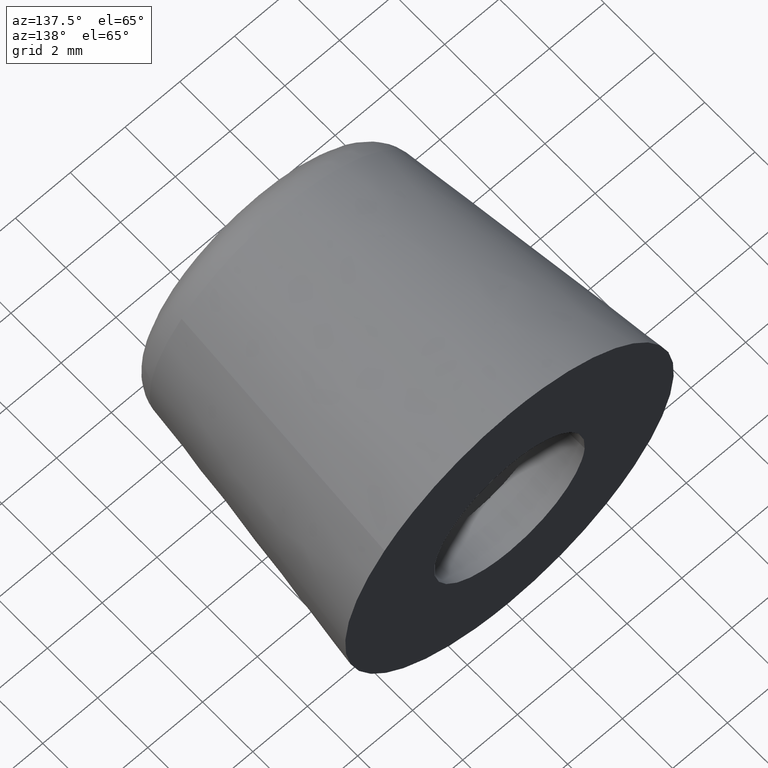
[diagram: clean part render]
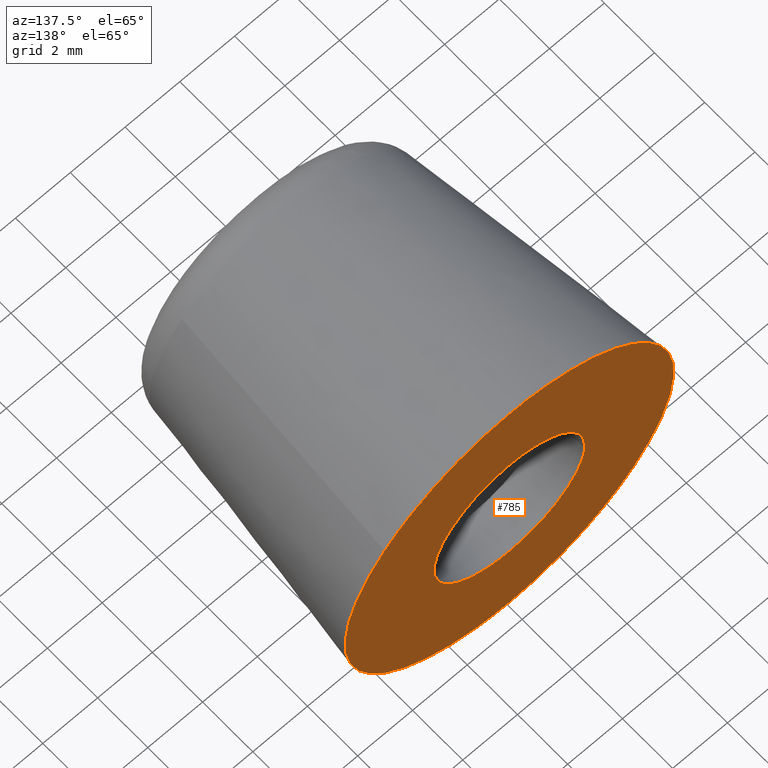
[diagram: same view with one face highlighted and labeled with its STEP entity id]
A machine part, auxiliary view. The second image highlights one B-rep face of the part: STEP entity #785.
In plain terms, the highlighted face is a freeform B-spline surface patch.
Its self-contained STEP definition (entity closure, byte-faithful):
#85=CARTESIAN_POINT('',(2.730776724657624,1.500000000000000,0.324589710324017));
#86=VERTEX_POINT('',#85);
#92=CARTESIAN_POINT('',(0.0,1.500000000000000,-2.750000000000000));
#93=VERTEX_POINT('',#92);
#94=CARTESIAN_POINT('',(2.730776724657625,1.500000000000000,0.324589710324016));
#95=CARTESIAN_POINT('',(2.750000000000000,1.500000000000000,0.162864088109226));
#96=CARTESIAN_POINT('',(2.750000000000000,1.500000000000000,0.0));
#97=CARTESIAN_POINT('',(2.750000000000000,1.500000000000000,-2.750000000000000));
#98=CARTESIAN_POINT('',(0.0,1.500000000000000,-2.750000000000000));
#106=(BOUNDED_CURVE()B_SPLINE_CURVE(2,(#94,#95,#96,#97,#98),.UNSPECIFIED.,.F.,.U.)B_SPLINE_CURVE_WITH_KNOTS((3,2,3),(0.229562747989419,0.250000000000000,0.500000000000000),.UNSPECIFIED.)CURVE()GEOMETRIC_REPRESENTATION_ITEM()RATIONAL_B_SPLINE_CURVE((0.956027292168423,0.976056269899677,1.0,0.707106781186548,1.0))REPRESENTATION_ITEM(''));
#107=EDGE_CURVE('',#86,#93,#106,.T.);
#109=CARTESIAN_POINT('',(-2.744870732306453,1.500000000000000,-0.167882884556682));
#110=VERTEX_POINT('',#109);
#111=CARTESIAN_POINT('',(0.0,1.500000000000000,-2.750000000000000));
#112=CARTESIAN_POINT('',(-2.586942815482608,1.499999999999999,-2.750000000000000));
#113=CARTESIAN_POINT('',(-2.744870732306454,1.500000000000000,-0.167882884556682));
#121=(BOUNDED_CURVE()B_SPLINE_CURVE(2,(#111,#112,#113),.UNSPECIFIED.,.F.,.U.)B_SPLINE_CURVE_WITH_KNOTS((3,3),(0.500000000000000,0.739333037570735),.UNSPECIFIED.)CURVE()GEOMETRIC_REPRESENTATION_ITEM()RATIONAL_B_SPLINE_CURVE((1.0,0.719603905030026,0.976072203117141))REPRESENTATION_ITEM(''));
#122=EDGE_CURVE('',#93,#110,#121,.T.);
#200=CARTESIAN_POINT('',(0.0,1.500000000000000,2.750000000000000));
#201=VERTEX_POINT('',#200);
#202=CARTESIAN_POINT('',(-2.744870732306453,1.500000000000000,-0.167882884556682));
#203=CARTESIAN_POINT('',(-2.749999999999999,1.500000000000000,-0.084019498226959));
#204=CARTESIAN_POINT('',(-2.750000000000000,1.500000000000000,0.0));
#205=CARTESIAN_POINT('',(-2.750000000000000,1.500000000000000,2.750000000000000));
#206=CARTESIAN_POINT('',(0.0,1.500000000000000,2.750000000000000));
#214=(BOUNDED_CURVE()B_SPLINE_CURVE(2,(#202,#203,#204,#205,#206),.UNSPECIFIED.,.F.,.U.)B_SPLINE_CURVE_WITH_KNOTS((3,2,3),(0.739333037570735,0.750000000000000,1.0),.UNSPECIFIED.)CURVE()GEOMETRIC_REPRESENTATION_ITEM()RATIONAL_B_SPLINE_CURVE((0.976072203117141,0.987502876156522,1.0,0.707106781186548,1.0))REPRESENTATION_ITEM(''));
#215=EDGE_CURVE('',#110,#201,#214,.T.);
#217=CARTESIAN_POINT('',(0.0,1.500000000000000,2.750000000000000));
#218=CARTESIAN_POINT('',(2.442483941060845,1.500000000000001,2.750000000000000));
#219=CARTESIAN_POINT('',(2.730776724657625,1.500000000000000,0.324589710324016));
#227=(BOUNDED_CURVE()B_SPLINE_CURVE(2,(#217,#218,#219),.UNSPECIFIED.,.F.,.U.)B_SPLINE_CURVE_WITH_KNOTS((3,3),(0.0,0.229562747989419),.UNSPECIFIED.)CURVE()GEOMETRIC_REPRESENTATION_ITEM()RATIONAL_B_SPLINE_CURVE((1.0,0.731050511286871,0.956027292168423))REPRESENTATION_ITEM(''));
#228=EDGE_CURVE('',#201,#86,#227,.T.);
#301=CARTESIAN_POINT('',(-4.562435850056587,1.499999495957191,-3.896688126865445));
#302=VERTEX_POINT('',#301);
#308=CARTESIAN_POINT('',(0.0,1.500000000000000,-6.0));
#309=VERTEX_POINT('',#308);
#310=CARTESIAN_POINT('',(0.0,1.500000000000000,-6.0));
#311=CARTESIAN_POINT('',(-2.766038081416517,1.500000000000000,-6.000000000000001));
#312=CARTESIAN_POINT('',(-4.562435850056587,1.499999495957191,-3.896688126865444));
#320=(BOUNDED_CURVE()B_SPLINE_CURVE(2,(#310,#311,#312),.UNSPECIFIED.,.F.,.U.)B_SPLINE_CURVE_WITH_KNOTS((3,3),(0.500000000000000,0.636856846745670),.UNSPECIFIED.)CURVE()GEOMETRIC_REPRESENTATION_ITEM()RATIONAL_B_SPLINE_CURVE((1.0,0.839662230560006,0.854871033438346))REPRESENTATION_ITEM(''));
#321=EDGE_CURVE('',#309,#302,#320,.T.);
#323=CARTESIAN_POINT('',(4.562435850056586,1.499999495957190,3.896688126865445));
#324=VERTEX_POINT('',#323);
#325=CARTESIAN_POINT('',(4.562435850056586,1.499999495957190,3.896688126865445));
#326=CARTESIAN_POINT('',(6.000000000000001,1.500000000000000,2.213516680087875));
#327=CARTESIAN_POINT('',(6.0,1.500000000000000,0.0));
#328=CARTESIAN_POINT('',(6.0,1.500000000000000,-6.0));
#329=CARTESIAN_POINT('',(0.0,1.500000000000000,-6.0));
#337=(BOUNDED_CURVE()B_SPLINE_CURVE(2,(#325,#326,#327,#328,#329),.UNSPECIFIED.,.F.,.U.)B_SPLINE_CURVE_WITH_KNOTS((3,2,3),(0.136856846745670,0.250000000000000,0.500000000000000),.UNSPECIFIED.)CURVE()GEOMETRIC_REPRESENTATION_ITEM()RATIONAL_B_SPLINE_CURVE((0.854871033438346,0.867444550626542,1.0,0.707106781186548,1.0))REPRESENTATION_ITEM(''));
#338=EDGE_CURVE('',#324,#309,#337,.T.);
#382=CARTESIAN_POINT('',(0.0,1.500000000000000,6.0));
#383=VERTEX_POINT('',#382);
#384=CARTESIAN_POINT('',(0.0,1.500000000000000,6.0));
#385=CARTESIAN_POINT('',(2.766038081416509,1.500000000000000,6.000000000000001));
#386=CARTESIAN_POINT('',(4.562435850056586,1.499999495957190,3.896688126865445));
#394=(BOUNDED_CURVE()B_SPLINE_CURVE(2,(#384,#385,#386),.UNSPECIFIED.,.F.,.U.)B_SPLINE_CURVE_WITH_KNOTS((3,3),(0.0,0.136856846745670),.UNSPECIFIED.)CURVE()GEOMETRIC_REPRESENTATION_ITEM()RATIONAL_B_SPLINE_CURVE((1.0,0.839662230560006,0.854871033438346))REPRESENTATION_ITEM(''));
#395=EDGE_CURVE('',#383,#324,#394,.T.);
#397=CARTESIAN_POINT('',(-4.562435850056586,1.499999495957191,-3.896688126865445));
#398=CARTESIAN_POINT('',(-6.000000000000001,1.500000000000000,-2.213516680087875));
#399=CARTESIAN_POINT('',(-6.0,1.500000000000000,0.0));
#400=CARTESIAN_POINT('',(-6.0,1.500000000000000,6.0));
#401=CARTESIAN_POINT('',(0.0,1.500000000000000,6.0));
#409=(BOUNDED_CURVE()B_SPLINE_CURVE(2,(#397,#398,#399,#400,#401),.UNSPECIFIED.,.F.,.U.)B_SPLINE_CURVE_WITH_KNOTS((3,2,3),(0.636856846745670,0.750000000000000,1.0),.UNSPECIFIED.)CURVE()GEOMETRIC_REPRESENTATION_ITEM()RATIONAL_B_SPLINE_CURVE((0.854871033438346,0.867444550626542,1.0,0.707106781186548,1.0))REPRESENTATION_ITEM(''));
#410=EDGE_CURVE('',#302,#383,#409,.T.);
#768=CARTESIAN_POINT('',(-6.597568022899032,1.500000000000000,6.599399976741671));
#769=CARTESIAN_POINT('',(-6.597568022899032,1.500000000000000,-6.599400298606753));
#770=CARTESIAN_POINT('',(6.597567915610672,1.500000000000000,6.599399976741671));
#771=CARTESIAN_POINT('',(6.597567915610672,1.500000000000000,-6.599400298606753));
#772=B_SPLINE_SURFACE_WITH_KNOTS('',1,1,((#768,#770),(#769,#771)),.UNSPECIFIED.,.F.,.F.,.U.,(2,2),(2,2),(0.0,13.198800275348420),(0.0,13.195135938509701),.UNSPECIFIED.);
#773=ORIENTED_EDGE('',*,*,#395,.T.);
#774=ORIENTED_EDGE('',*,*,#338,.T.);
#775=ORIENTED_EDGE('',*,*,#321,.T.);
#776=ORIENTED_EDGE('',*,*,#410,.T.);
#777=EDGE_LOOP('',(#773,#774,#775,#776));
#778=FACE_OUTER_BOUND('',#777,.T.);
#779=ORIENTED_EDGE('',*,*,#122,.F.);
#780=ORIENTED_EDGE('',*,*,#107,.F.);
#781=ORIENTED_EDGE('',*,*,#228,.F.);
#782=ORIENTED_EDGE('',*,*,#215,.F.);
#783=EDGE_LOOP('',(#779,#780,#781,#782));
#784=FACE_BOUND('',#783,.T.);
#785=ADVANCED_FACE('',(#778,#784),#772,.F.);